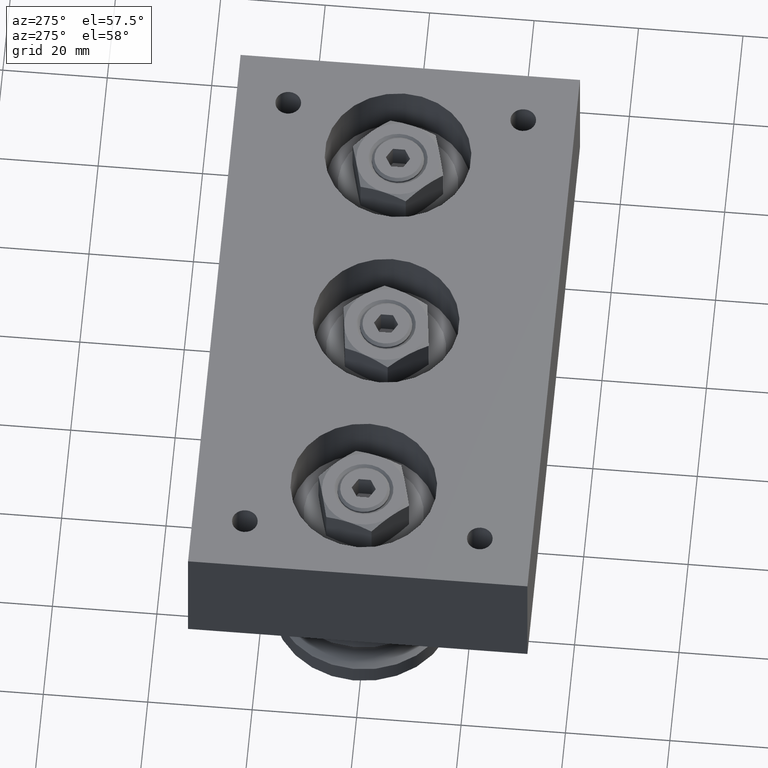
[diagram: clean part render]
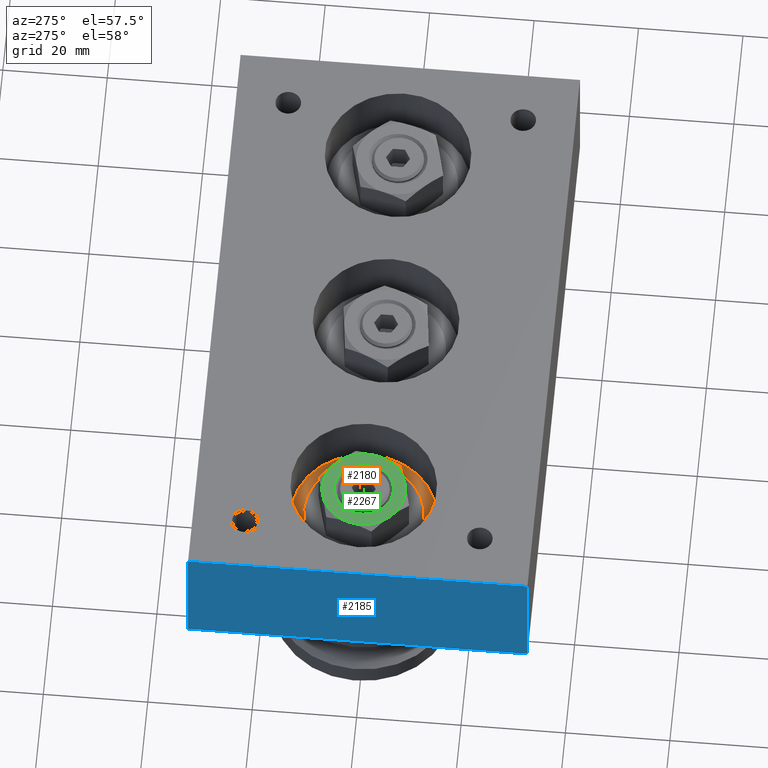
[diagram: same view with three faces highlighted in distinct colors, each labeled with its STEP entity id]
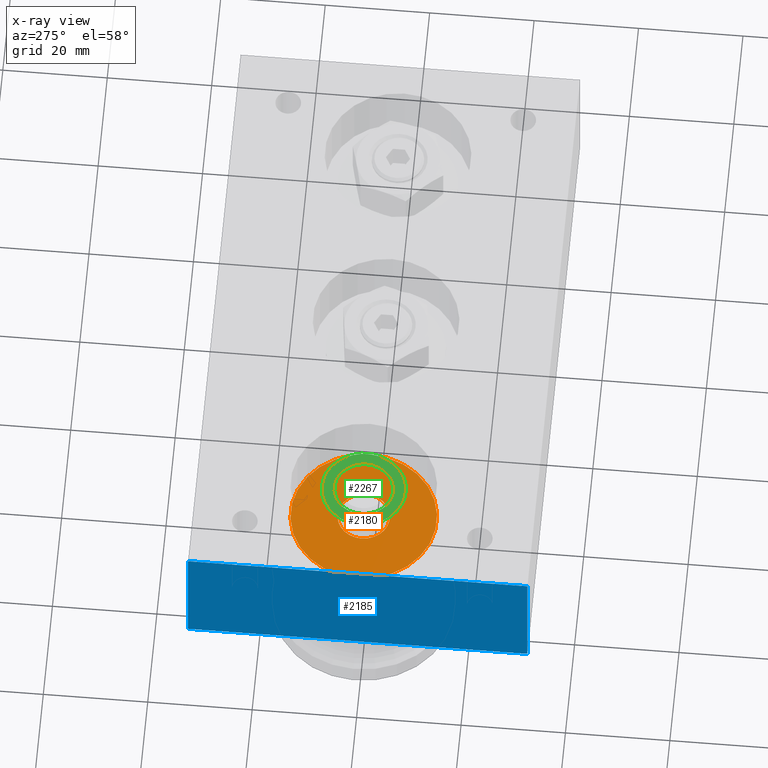
[diagram: x-ray of the same camera — body ghosted, the three highlighted faces saturated]
A machine part, auxiliary view with three faces highlighted in distinct colors.
The next image is the same camera in x-ray (body ghosted, the three faces saturated) — at least one of them is partly hidden behind the body in this view.
Their STEP definitions:

[orange] entity #2180 — the highlighted planar face has unit normal (0, 0, 1).
#151=FACE_BOUND('',#464,.T.);
#194=PLANE('',#2548);
#319=FACE_OUTER_BOUND('',#463,.T.);
#463=EDGE_LOOP('',(#1590));
#464=EDGE_LOOP('',(#1591));
#932=CIRCLE('',#2549,14.);
#933=CIRCLE('',#2550,5.);
#1069=VERTEX_POINT('',#3626);
#1070=VERTEX_POINT('',#3628);
#1273=EDGE_CURVE('',#1069,#1069,#932,.T.);
#1274=EDGE_CURVE('',#1070,#1070,#933,.T.);
#1590=ORIENTED_EDGE('',*,*,#1273,.T.);
#1591=ORIENTED_EDGE('',*,*,#1274,.F.);
#2180=ADVANCED_FACE('',(#319,#151),#194,.T.);
#2548=AXIS2_PLACEMENT_3D('',#3625,#2897,#2898);
#2549=AXIS2_PLACEMENT_3D('',#3627,#2899,#2900);
#2550=AXIS2_PLACEMENT_3D('',#3629,#2901,#2902);
#2897=DIRECTION('center_axis',(0.,0.,1.));
#2898=DIRECTION('ref_axis',(1.,0.,0.));
#2899=DIRECTION('center_axis',(0.,0.,1.));
#2900=DIRECTION('ref_axis',(1.,0.,0.));
#2901=DIRECTION('center_axis',(0.,0.,1.));
#2902=DIRECTION('ref_axis',(1.,0.,0.));
#3625=CARTESIAN_POINT('Origin',(-37.5,0.600000000000009,13.));
#3626=CARTESIAN_POINT('',(-51.5,0.600000000000008,13.));
#3627=CARTESIAN_POINT('Origin',(-37.5,0.600000000000009,13.));
#3628=CARTESIAN_POINT('',(-42.5,0.600000000000009,13.));
#3629=CARTESIAN_POINT('Origin',(-37.5,0.600000000000009,13.));

[blue] entity #2185 — the highlighted planar face has unit normal (-1, 0, 0).
#197=PLANE('',#2557);
#324=FACE_OUTER_BOUND('',#469,.T.);
#469=EDGE_LOOP('',(#1608,#1609,#1610,#1611));
#651=LINE('',#3651,#791);
#653=LINE('',#3655,#793);
#654=LINE('',#3657,#794);
#655=LINE('',#3658,#795);
#791=VECTOR('',#2922,10.);
#793=VECTOR('',#2926,10.);
#794=VECTOR('',#2927,10.);
#795=VECTOR('',#2928,10.);
#1077=VERTEX_POINT('',#3648);
#1078=VERTEX_POINT('',#3650);
#1079=VERTEX_POINT('',#3654);
#1080=VERTEX_POINT('',#3656);
#1284=EDGE_CURVE('',#1078,#1077,#651,.T.);
#1286=EDGE_CURVE('',#1077,#1079,#653,.T.);
#1287=EDGE_CURVE('',#1080,#1079,#654,.T.);
#1288=EDGE_CURVE('',#1078,#1080,#655,.T.);
#1608=ORIENTED_EDGE('',*,*,#1286,.T.);
#1609=ORIENTED_EDGE('',*,*,#1287,.F.);
#1610=ORIENTED_EDGE('',*,*,#1288,.F.);
#1611=ORIENTED_EDGE('',*,*,#1284,.T.);
#2185=ADVANCED_FACE('',(#324),#197,.T.);
#2557=AXIS2_PLACEMENT_3D('',#3653,#2924,#2925);
#2922=DIRECTION('',(0.,0.,1.));
#2924=DIRECTION('center_axis',(-1.,0.,0.));
#2925=DIRECTION('ref_axis',(0.,0.,1.));
#2926=DIRECTION('',(0.,1.,0.));
#2927=DIRECTION('',(0.,0.,1.));
#2928=DIRECTION('',(0.,1.,0.));
#3648=CARTESIAN_POINT('',(-57.5,-32.5,24.));
#3650=CARTESIAN_POINT('',(-57.5,-32.5,0.));
#3651=CARTESIAN_POINT('',(-57.5,-32.5,0.));
#3653=CARTESIAN_POINT('Origin',(-57.5,-32.5,0.));
#3654=CARTESIAN_POINT('',(-57.5,32.5,24.));
#3655=CARTESIAN_POINT('',(-57.5,-32.5,24.));
#3656=CARTESIAN_POINT('',(-57.5,32.5,0.));
#3657=CARTESIAN_POINT('',(-57.5,32.5,0.));
#3658=CARTESIAN_POINT('',(-57.5,-32.5,0.));

[green] entity #2267 — the highlighted planar face has unit normal (-0, 0, -1).
#191=FACE_BOUND('',#591,.T.);
#238=PLANE('',#2723);
#406=FACE_OUTER_BOUND('',#590,.T.);
#590=EDGE_LOOP('',(#1939,#1940,#1941,#1942,#1943,#1944));
#591=EDGE_LOOP('',(#1945));
#1012=CIRCLE('',#2722,5.66666666666667);
#1013=CIRCLE('',#2724,8.);
#1014=CIRCLE('',#2725,8.);
#1015=CIRCLE('',#2726,8.);
#1016=CIRCLE('',#2727,8.);
#1017=CIRCLE('',#2728,8.);
#1018=CIRCLE('',#2729,8.);
#1182=VERTEX_POINT('',#4001);
#1183=VERTEX_POINT('',#4005);
#1184=VERTEX_POINT('',#4006);
#1185=VERTEX_POINT('',#4008);
#1186=VERTEX_POINT('',#4010);
#1187=VERTEX_POINT('',#4012);
#1188=VERTEX_POINT('',#4014);
#1442=EDGE_CURVE('',#1182,#1182,#1012,.T.);
#1444=EDGE_CURVE('',#1183,#1184,#1013,.T.);
#1445=EDGE_CURVE('',#1184,#1185,#1014,.T.);
#1446=EDGE_CURVE('',#1185,#1186,#1015,.T.);
#1447=EDGE_CURVE('',#1186,#1187,#1016,.T.);
#1448=EDGE_CURVE('',#1187,#1188,#1017,.T.);
#1449=EDGE_CURVE('',#1188,#1183,#1018,.T.);
#1939=ORIENTED_EDGE('',*,*,#1444,.T.);
#1940=ORIENTED_EDGE('',*,*,#1445,.T.);
#1941=ORIENTED_EDGE('',*,*,#1446,.T.);
#1942=ORIENTED_EDGE('',*,*,#1447,.T.);
#1943=ORIENTED_EDGE('',*,*,#1448,.T.);
#1944=ORIENTED_EDGE('',*,*,#1449,.T.);
#1945=ORIENTED_EDGE('',*,*,#1442,.F.);
#2267=ADVANCED_FACE('',(#406,#191),#238,.F.);
#2722=AXIS2_PLACEMENT_3D('',#4002,#3334,#3335);
#2723=AXIS2_PLACEMENT_3D('',#4004,#3337,#3338);
#2724=AXIS2_PLACEMENT_3D('',#4007,#3339,#3340);
#2725=AXIS2_PLACEMENT_3D('',#4009,#3341,#3342);
#2726=AXIS2_PLACEMENT_3D('',#4011,#3343,#3344);
#2727=AXIS2_PLACEMENT_3D('',#4013,#3345,#3346);
#2728=AXIS2_PLACEMENT_3D('',#4015,#3347,#3348);
#2729=AXIS2_PLACEMENT_3D('',#4016,#3349,#3350);
#3334=DIRECTION('center_axis',(0.,0.,-1.));
#3335=DIRECTION('ref_axis',(-1.,0.,0.));
#3337=DIRECTION('center_axis',(0.,0.,1.));
#3338=DIRECTION('ref_axis',(1.,0.,0.));
#3339=DIRECTION('center_axis',(0.,0.,-1.));
#3340=DIRECTION('ref_axis',(-1.,0.,0.));
#3341=DIRECTION('center_axis',(0.,0.,-1.));
#3342=DIRECTION('ref_axis',(-1.,0.,0.));
#3343=DIRECTION('center_axis',(0.,0.,-1.));
#3344=DIRECTION('ref_axis',(-1.,0.,0.));
#3345=DIRECTION('center_axis',(0.,0.,-1.));
#3346=DIRECTION('ref_axis',(-1.,0.,0.));
#3347=DIRECTION('center_axis',(0.,0.,-1.));
#3348=DIRECTION('ref_axis',(-1.,0.,0.));
#3349=DIRECTION('center_axis',(0.,0.,-1.));
#3350=DIRECTION('ref_axis',(-1.,0.,0.));
#4001=CARTESIAN_POINT('',(5.66666666666667,-6.93966519516833E-16,0.));
#4002=CARTESIAN_POINT('Origin',(0.,0.,0.));
#4004=CARTESIAN_POINT('Origin',(8.32667268468867E-16,-1.38777878078145E-16,
0.));
#4005=CARTESIAN_POINT('',(-3.99999999999999,-6.92820323027551,0.));
#4006=CARTESIAN_POINT('',(-8.,0.,0.));
#4007=CARTESIAN_POINT('Origin',(0.,0.,0.));
#4008=CARTESIAN_POINT('',(-4.,6.92820323027551,0.));
#4009=CARTESIAN_POINT('Origin',(0.,0.,0.));
#4010=CARTESIAN_POINT('',(3.99999999999999,6.92820323027551,0.));
#4011=CARTESIAN_POINT('Origin',(0.,0.,0.));
#4012=CARTESIAN_POINT('',(8.,1.92296268638356E-15,0.));
#4013=CARTESIAN_POINT('Origin',(0.,0.,0.));
#4014=CARTESIAN_POINT('',(4.,-6.92820323027551,0.));
#4015=CARTESIAN_POINT('Origin',(0.,0.,0.));
#4016=CARTESIAN_POINT('Origin',(0.,0.,0.));